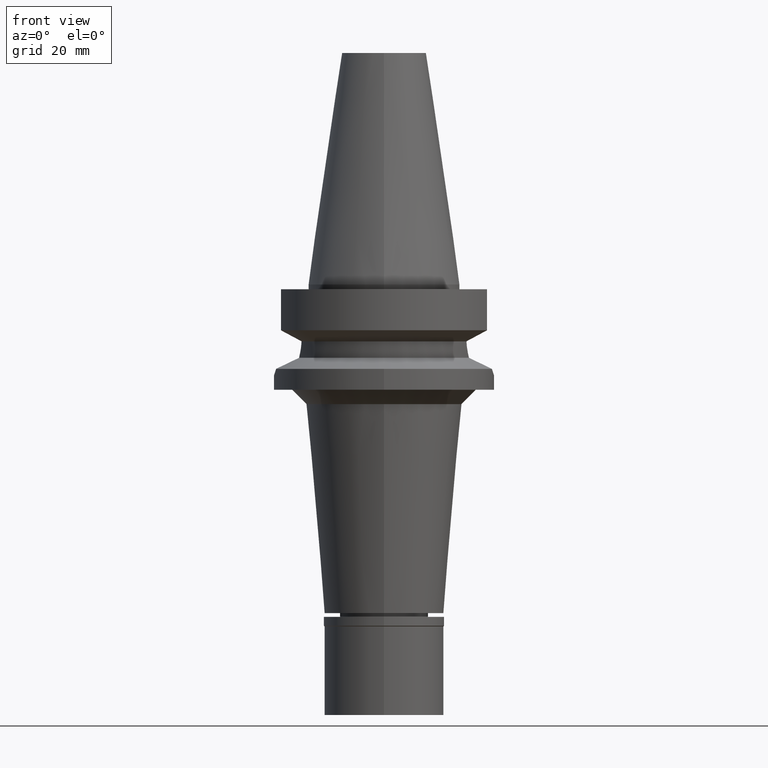
[diagram: clean part render]
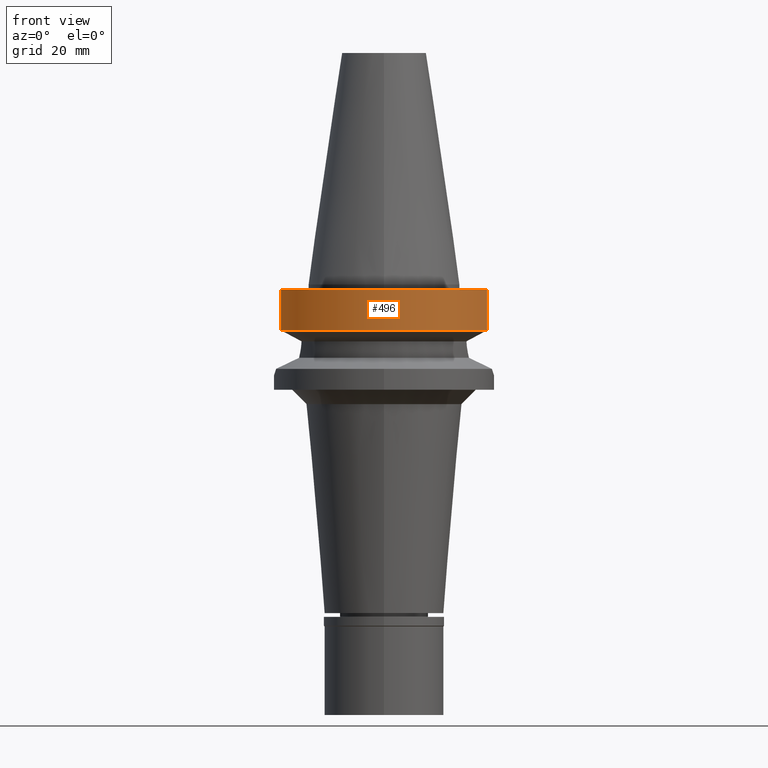
[diagram: same view with one face highlighted and labeled with its STEP entity id]
A machine part, front view. The second image highlights one B-rep face of the part: STEP entity #496.
In plain terms, the highlighted cylindrical surface (partial cylindrical patch) has radius 23 mm, axis along (0, 0, -1).
Its self-contained STEP definition (entity closure, byte-faithful):
#6 = EDGE_CURVE ( 'NONE', #2193, #3048, #932, .T. ) ;
#88 = CIRCLE ( 'NONE', #2892, 23.00000000000000000 ) ;
#94 = DIRECTION ( 'NONE',  ( 0.0000000000000000000, 0.0000000000000000000, -1.000000000000000000 ) ) ;
#177 = DIRECTION ( 'NONE',  ( 0.0000000000000000000, 0.0000000000000000000, -1.000000000000000000 ) ) ;
#424 = EDGE_CURVE ( 'NONE', #2430, #1722, #1729, .T. ) ;
#496 = ADVANCED_FACE ( 'NONE', ( #565 ), #2018, .T. ) ;
#545 = ORIENTED_EDGE ( 'NONE', *, *, #586, .T. ) ;
#565 = FACE_OUTER_BOUND ( 'NONE', #2058, .T. ) ;
#586 = EDGE_CURVE ( 'NONE', #2430, #3048, #88, .T. ) ;
#840 = EDGE_CURVE ( 'NONE', #2193, #1722, #1032, .T. ) ;
#882 = CARTESIAN_POINT ( 'NONE',  ( 21.54524309446999908, -8.050000000002000888, -9.567208369710998639 ) ) ;
#901 = DIRECTION ( 'NONE',  ( 1.843191754168992707E-08, -4.933165888406983159E-08, 0.9999999999999985567 ) ) ;
#930 = DIRECTION ( 'NONE',  ( 0.0000000000000000000, -1.000000000000000000, 0.0000000000000000000 ) ) ;
#932 = LINE ( 'NONE', #3010, #1226 ) ;
#933 = CARTESIAN_POINT ( 'NONE',  ( -21.54524309446999908, -8.050000000000000711, -1.000000000000000000 ) ) ;
#1032 = CIRCLE ( 'NONE', #1978, 23.00000000000000000 ) ;
#1100 = DIRECTION ( 'NONE',  ( 0.0000000000000000000, -1.000000000000000000, 0.0000000000000000000 ) ) ;
#1153 = CARTESIAN_POINT ( 'NONE',  ( 0.0000000000000000000, 0.0000000000000000000, -1.000000000000000000 ) ) ;
#1226 = VECTOR ( 'NONE', #901, 1000.000000000000114 ) ;
#1249 = ORIENTED_EDGE ( 'NONE', *, *, #6, .F. ) ;
#1523 = CARTESIAN_POINT ( 'NONE',  ( 0.0000000000000000000, 0.0000000000000000000, 0.0000000000000000000 ) ) ;
#1584 = ORIENTED_EDGE ( 'NONE', *, *, #424, .F. ) ;
#1656 = CARTESIAN_POINT ( 'NONE',  ( -21.54524325238000060, -8.049999577366000025, -9.567211146628999074 ) ) ;
#1681 = DIRECTION ( 'NONE',  ( -9.134702132273689133E-08, -2.444836106403914732E-07, -0.9999999999999659162 ) ) ;
#1722 = VERTEX_POINT ( 'NONE', #882 ) ;
#1729 = LINE ( 'NONE', #1929, #2938 ) ;
#1929 = CARTESIAN_POINT ( 'NONE',  ( 21.54524309446999908, -8.050000000000000711, -1.000000000000000000 ) ) ;
#1978 = AXIS2_PLACEMENT_3D ( 'NONE', #2642, #2367, #930 ) ;
#2018 = CYLINDRICAL_SURFACE ( 'NONE', #2362, 23.00000000000000000 ) ;
#2058 = EDGE_LOOP ( 'NONE', ( #1249, #2276, #1584, #545 ) ) ;
#2193 = VERTEX_POINT ( 'NONE', #1656 ) ;
#2231 = DIRECTION ( 'NONE',  ( 0.0000000000000000000, -1.000000000000000000, 0.0000000000000000000 ) ) ;
#2276 = ORIENTED_EDGE ( 'NONE', *, *, #840, .T. ) ;
#2362 = AXIS2_PLACEMENT_3D ( 'NONE', #1523, #94, #2231 ) ;
#2367 = DIRECTION ( 'NONE',  ( 0.0000000000000000000, 0.0000000000000000000, 1.000000000000000000 ) ) ;
#2430 = VERTEX_POINT ( 'NONE', #2951 ) ;
#2642 = CARTESIAN_POINT ( 'NONE',  ( 0.0000000000000000000, 0.0000000000000000000, -9.567208369710998639 ) ) ;
#2892 = AXIS2_PLACEMENT_3D ( 'NONE', #1153, #177, #1100 ) ;
#2938 = VECTOR ( 'NONE', #1681, 1000.000000000000114 ) ;
#2951 = CARTESIAN_POINT ( 'NONE',  ( 21.54524309446999908, -8.050000000000000711, -1.000000000000000000 ) ) ;
#3010 = CARTESIAN_POINT ( 'NONE',  ( -21.54524325238000060, -8.049999577366000025, -9.567211146628999074 ) ) ;
#3048 = VERTEX_POINT ( 'NONE', #933 ) ;